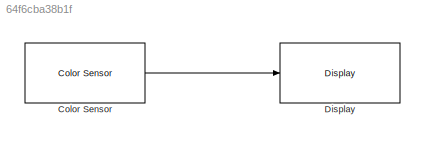
MODEL slx_64f6cba38b1f
KIND model
CONFIG AbsTol = auto
CONFIG EnableMultiTasking = on
CONFIG FixedStep = auto
CONFIG MaxStep = auto
CONFIG MinStep = auto
CONFIG RelTol = 1e-3
CONFIG SampleTimeConstraint = Unconstrained
CONFIG Solver = FixedStepAuto
CONFIG SolverName = FixedStepAuto
CONFIG StartTime = 0.0
CONFIG StopTime = 10.0
BLOCK [Reference] Color Sensor  REF=legoev3lib/Color Sensor
  Ports = [0, 1]
  SourceBlock = legoev3lib/Color Sensor
  SourceType = LEGO MINDSTORMS EV3 Color Sensor
BLOCK [Reference] Display  REF=legoev3lib/Display
  Ports = [1]
  SourceBlock = legoev3lib/Display
  SourceType = LEGO MINDSTORMS EV3 Display
LINE Color Sensor:1 -> Display:1
